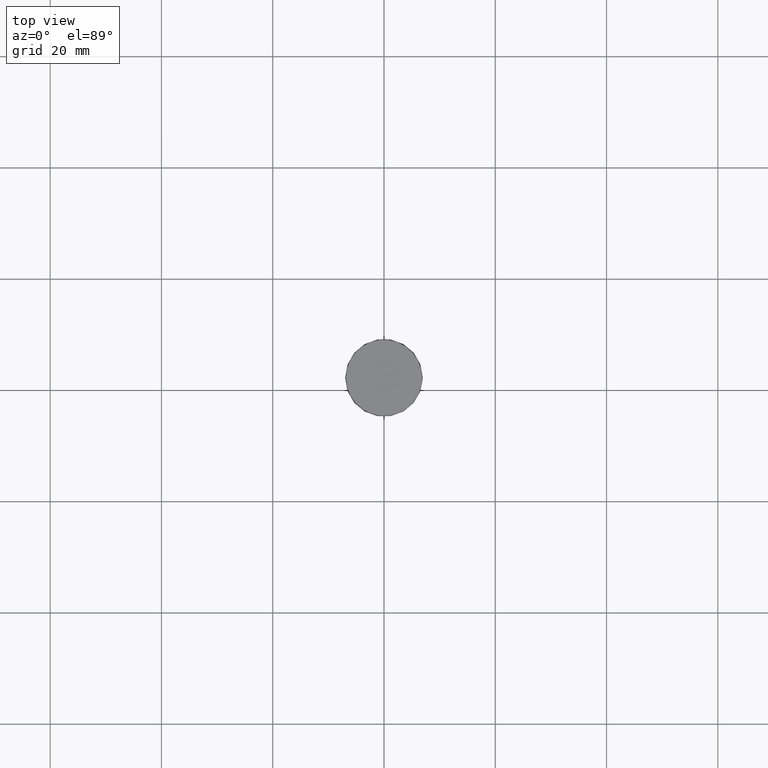
[diagram: clean part render]
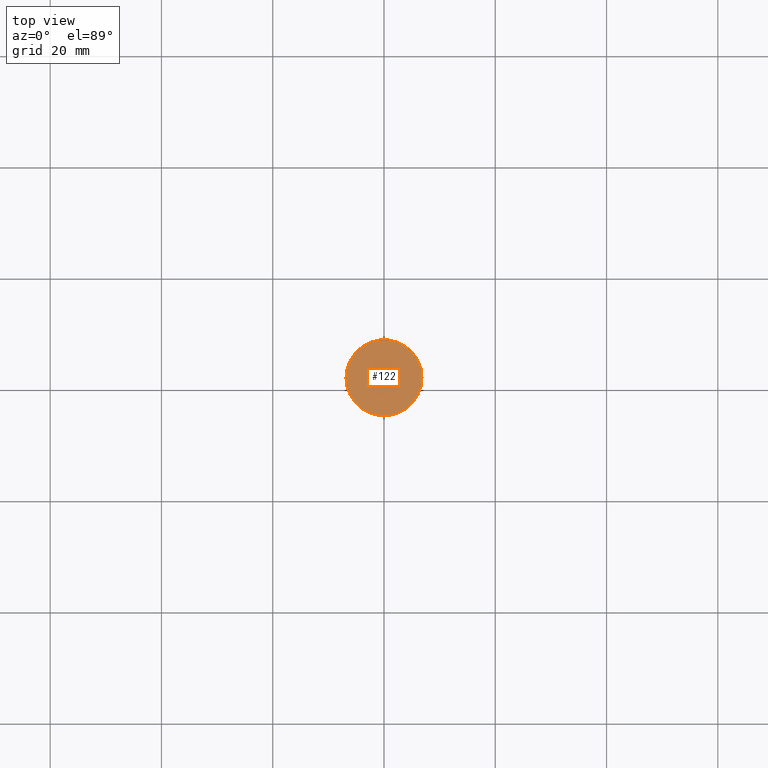
[diagram: same view with one face highlighted and labeled with its STEP entity id]
A machine part, top view. The second image highlights one B-rep face of the part: STEP entity #122.
In plain terms, the highlighted planar face has unit normal (0, 0, 1).
Its self-contained STEP definition (entity closure, byte-faithful):
#12 = DIRECTION ( 'NONE',  ( 1.000000000000000000, 0.0000000000000000000, 0.0000000000000000000 ) ) ;
#21 = CARTESIAN_POINT ( 'NONE',  ( 0.0000000000000000000, 0.0000000000000000000, 5.243895595530290800E-014 ) ) ;
#23 = DIRECTION ( 'NONE',  ( 0.0000000000000000000, 0.0000000000000000000, -1.000000000000000000 ) ) ;
#25 = EDGE_LOOP ( 'NONE', ( #319, #87 ) ) ;
#52 = AXIS2_PLACEMENT_3D ( 'NONE', #183, #123, #12 ) ;
#74 = FACE_OUTER_BOUND ( 'NONE', #25, .T. ) ;
#78 = VERTEX_POINT ( 'NONE', #380 ) ;
#87 = ORIENTED_EDGE ( 'NONE', *, *, #209, .F. ) ;
#122 = ADVANCED_FACE ( 'NONE', ( #74 ), #314, .T. ) ;
#123 = DIRECTION ( 'NONE',  ( 0.0000000000000000000, -0.0000000000000000000, 1.000000000000000000 ) ) ;
#127 = VERTEX_POINT ( 'NONE', #187 ) ;
#152 = DIRECTION ( 'NONE',  ( -1.000000000000000000, 0.0000000000000000000, 0.0000000000000000000 ) ) ;
#154 = DIRECTION ( 'NONE',  ( 0.0000000000000000000, 0.0000000000000000000, -1.000000000000000000 ) ) ;
#164 = CARTESIAN_POINT ( 'NONE',  ( 0.0000000000000000000, 0.0000000000000000000, 5.243895595530290800E-014 ) ) ;
#183 = CARTESIAN_POINT ( 'NONE',  ( 6.828427118366800400, 0.0000000000000000000, 5.243895603471224000E-014 ) ) ;
#187 = CARTESIAN_POINT ( 'NONE',  ( 6.828427118366800400, 8.362411413718889200E-016, 5.243895595530290800E-014 ) ) ;
#209 = EDGE_CURVE ( 'NONE', #127, #78, #363, .T. ) ;
#211 = DIRECTION ( 'NONE',  ( -1.000000000000000000, 0.0000000000000000000, 0.0000000000000000000 ) ) ;
#250 = CIRCLE ( 'NONE', #293, 6.828427118366800400 ) ;
#293 = AXIS2_PLACEMENT_3D ( 'NONE', #21, #23, #211 ) ;
#305 = AXIS2_PLACEMENT_3D ( 'NONE', #164, #154, #152 ) ;
#314 = PLANE ( 'NONE',  #52 ) ;
#319 = ORIENTED_EDGE ( 'NONE', *, *, #432, .F. ) ;
#363 = CIRCLE ( 'NONE', #305, 6.828427118366800400 ) ;
#380 = CARTESIAN_POINT ( 'NONE',  ( -6.828427118366800400, 0.0000000000000000000, 5.243895595530290800E-014 ) ) ;
#432 = EDGE_CURVE ( 'NONE', #78, #127, #250, .T. ) ;